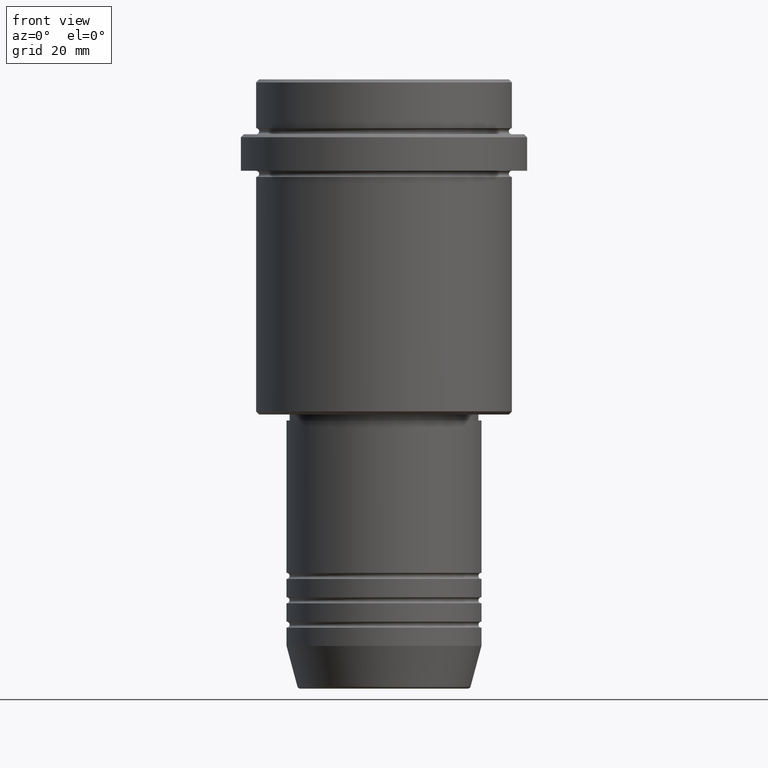
[diagram: clean part render]
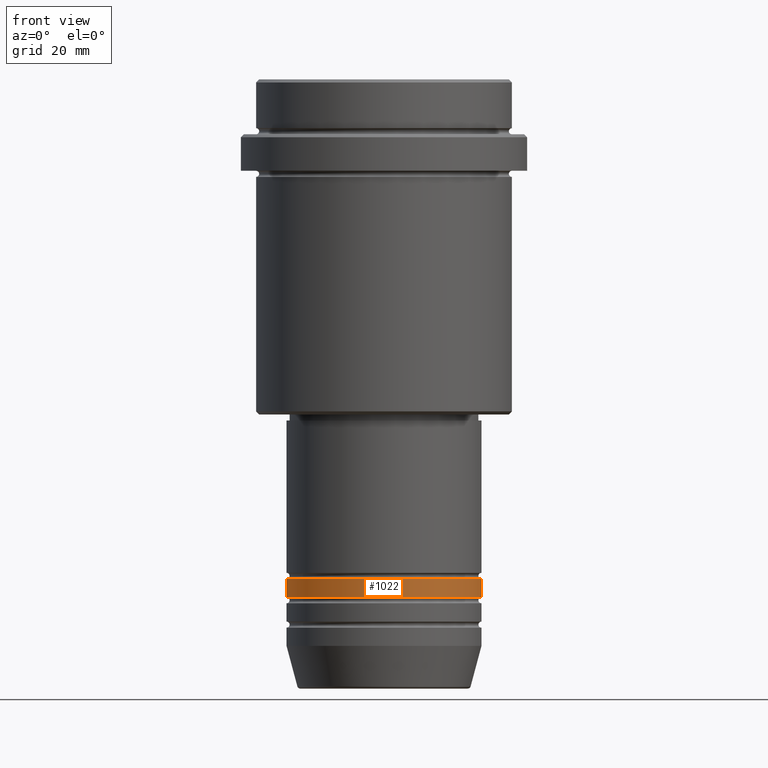
[diagram: same view with one face highlighted and labeled with its STEP entity id]
A machine part, front view. The second image highlights one B-rep face of the part: STEP entity #1022.
In plain terms, the highlighted cylindrical surface (partial cylindrical patch) has radius 16 mm, axis along (-0, -0, 1).
Its self-contained STEP definition (entity closure, byte-faithful):
#23 = EDGE_CURVE ( 'NONE', #485, #1023, #491, .T. ) ;
#32 = EDGE_CURVE ( 'NONE', #755, #485, #1197, .T. ) ;
#173 = CARTESIAN_POINT ( 'NONE',  ( 0.000000000000000000, 0.000000000000000000, -81.99999999999987210 ) ) ;
#207 = VECTOR ( 'NONE', #1269, 1000.000000000000000 ) ;
#228 = CIRCLE ( 'NONE', #820, 16.00000000000000000 ) ;
#249 = CARTESIAN_POINT ( 'NONE',  ( -16.00000000000000000, 1.959434878635765131E-15, -84.99999999999988631 ) ) ;
#270 = ORIENTED_EDGE ( 'NONE', *, *, #627, .T. ) ;
#291 = DIRECTION ( 'NONE',  ( -0.000000000000000000, -0.000000000000000000, 1.000000000000000000 ) ) ;
#385 = VECTOR ( 'NONE', #1165, 1000.000000000000000 ) ;
#399 = CARTESIAN_POINT ( 'NONE',  ( 0.000000000000000000, 0.000000000000000000, 0.000000000000000000 ) ) ;
#407 = EDGE_CURVE ( 'NONE', #755, #1065, #228, .T. ) ;
#465 = DIRECTION ( 'NONE',  ( -0.000000000000000000, -0.000000000000000000, 1.000000000000000000 ) ) ;
#469 = DIRECTION ( 'NONE',  ( -0.000000000000000000, -0.000000000000000000, 1.000000000000000000 ) ) ;
#485 = VERTEX_POINT ( 'NONE', #1033 ) ;
#491 = CIRCLE ( 'NONE', #795, 16.00000000000000000 ) ;
#497 = AXIS2_PLACEMENT_3D ( 'NONE', #399, #291, #613 ) ;
#499 = CARTESIAN_POINT ( 'NONE',  ( 16.00000000000000000, 0.000000000000000000, 0.000000000000000000 ) ) ;
#508 = DIRECTION ( 'NONE',  ( 1.000000000000000000, 0.000000000000000000, 0.000000000000000000 ) ) ;
#613 = DIRECTION ( 'NONE',  ( 1.000000000000000000, 0.000000000000000000, 0.000000000000000000 ) ) ;
#627 = EDGE_CURVE ( 'NONE', #1065, #1023, #1054, .T. ) ;
#710 = FACE_OUTER_BOUND ( 'NONE', #1070, .T. ) ;
#723 = ORIENTED_EDGE ( 'NONE', *, *, #32, .F. ) ;
#755 = VERTEX_POINT ( 'NONE', #249 ) ;
#795 = AXIS2_PLACEMENT_3D ( 'NONE', #173, #469, #508 ) ;
#807 = DIRECTION ( 'NONE',  ( 1.000000000000000000, 0.000000000000000000, 0.000000000000000000 ) ) ;
#811 = CARTESIAN_POINT ( 'NONE',  ( 16.00000000000000000, 0.000000000000000000, -81.99999999999987210 ) ) ;
#820 = AXIS2_PLACEMENT_3D ( 'NONE', #1246, #465, #807 ) ;
#875 = ORIENTED_EDGE ( 'NONE', *, *, #23, .F. ) ;
#964 = CARTESIAN_POINT ( 'NONE',  ( 16.00000000000000000, 0.000000000000000000, -84.99999999999988631 ) ) ;
#1022 = ADVANCED_FACE ( 'NONE', ( #710 ), #1376, .T. ) ;
#1023 = VERTEX_POINT ( 'NONE', #811 ) ;
#1033 = CARTESIAN_POINT ( 'NONE',  ( -16.00000000000000000, 1.959434878635765131E-15, -81.99999999999987210 ) ) ;
#1054 = LINE ( 'NONE', #499, #207 ) ;
#1065 = VERTEX_POINT ( 'NONE', #964 ) ;
#1070 = EDGE_LOOP ( 'NONE', ( #723, #1162, #270, #875 ) ) ;
#1071 = CARTESIAN_POINT ( 'NONE',  ( -16.00000000000000000, 1.959434878635765131E-15, 0.000000000000000000 ) ) ;
#1162 = ORIENTED_EDGE ( 'NONE', *, *, #407, .T. ) ;
#1165 = DIRECTION ( 'NONE',  ( -0.000000000000000000, -0.000000000000000000, 1.000000000000000000 ) ) ;
#1197 = LINE ( 'NONE', #1071, #385 ) ;
#1246 = CARTESIAN_POINT ( 'NONE',  ( 0.000000000000000000, 0.000000000000000000, -84.99999999999988631 ) ) ;
#1269 = DIRECTION ( 'NONE',  ( -0.000000000000000000, -0.000000000000000000, 1.000000000000000000 ) ) ;
#1376 = CYLINDRICAL_SURFACE ( 'NONE', #497, 16.00000000000000000 ) ;